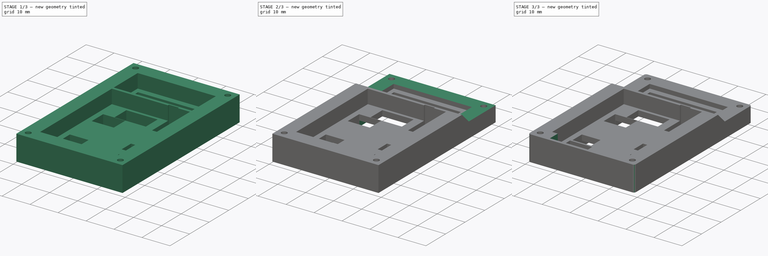
[diagram: build sequence overview — one tinted view per stage of 3, left to right]
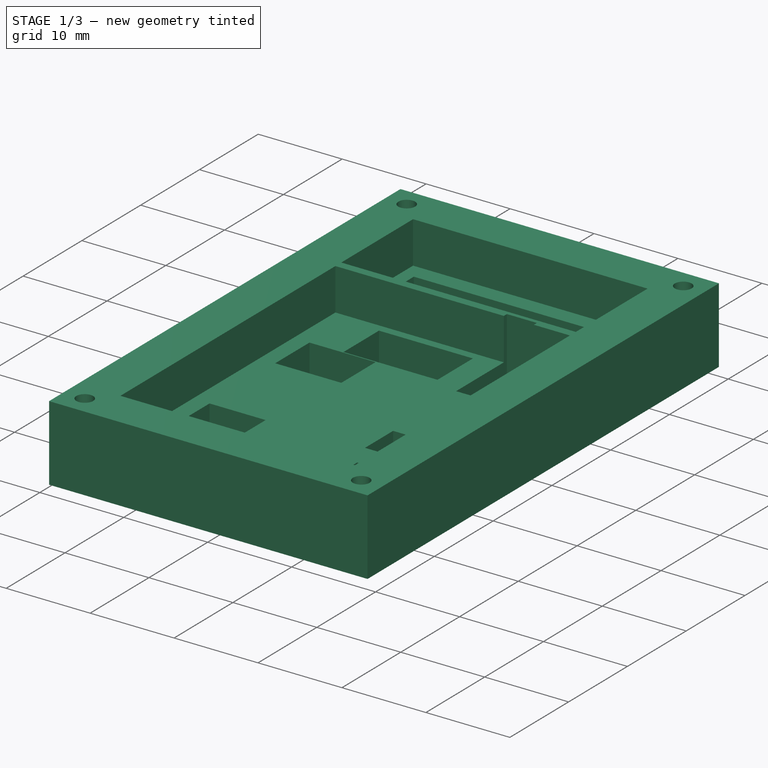
[diagram: stage 1 of 3 — iso view after this stage's code; geometry added in this stage tinted green]
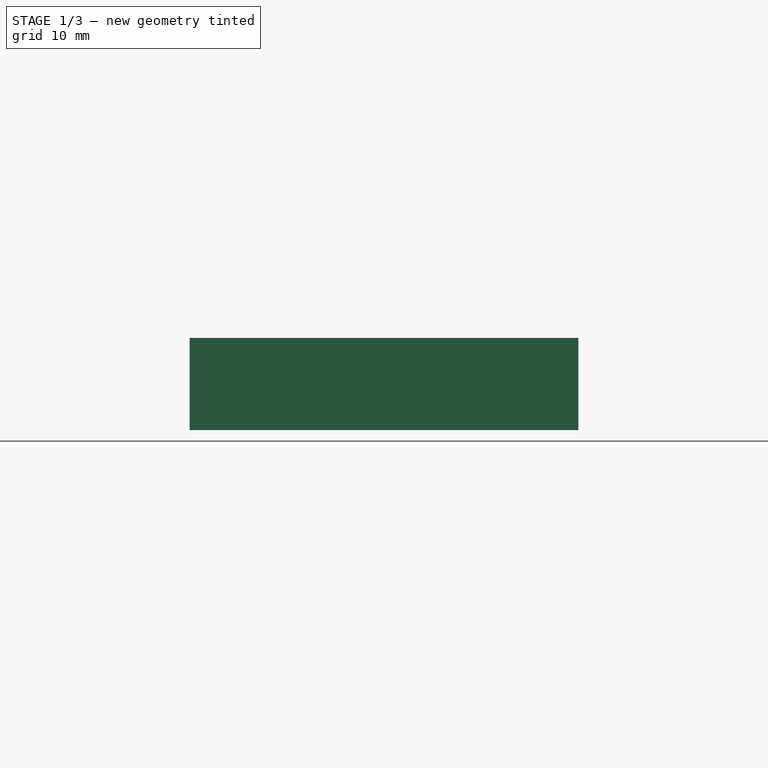
[diagram: stage 1 of 3 — front view after this stage's code; geometry added in this stage tinted green]
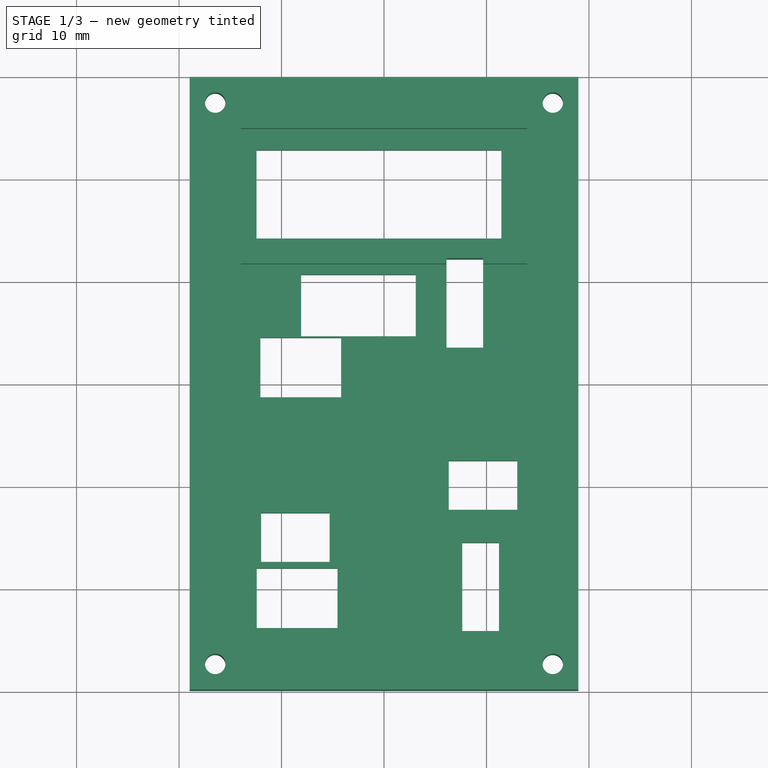
[diagram: stage 1 of 3 — top view after this stage's code; geometry added in this stage tinted green]
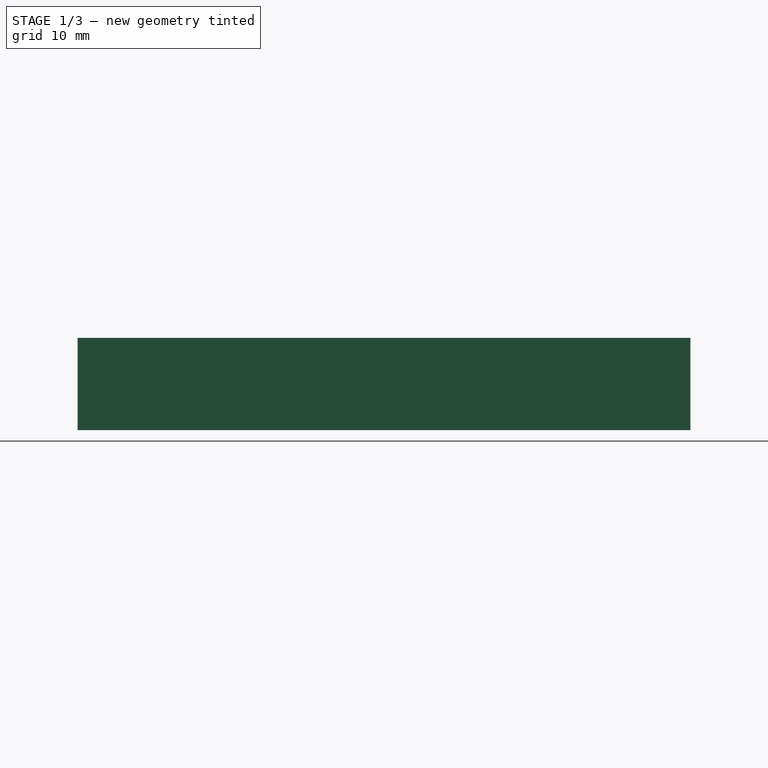
[diagram: stage 1 of 3 — right view after this stage's code; geometry added in this stage tinted green]
FCSTD DOCUMENT  (FreeCAD 0.18R16093 +53 (Git))
Label: middle_plate
License: All rights reserved
LicenseURL: http://en.wikipedia.org/wiki/All_rights_reserved
objects: Sketcher::SketchObject×5, PartDesign::Pocket×4, PartDesign::Pad×1, PartDesign::Fillet×1, PartDesign::Body×1
note: 17 computed .brp shape members not serialized (recipe doc carries the construction recipe); baked Part::Feature solids carry a one-line shape summary decoded from their .brp

FEATURE [Sketcher::SketchObject] Sketch002  label="Sketch"
  MapMode = 5
  Placement = pos=(0,0,9) rot=(0,0,1;0rad)
  sketch-geometry (40):
    g0: LineSegment StartX=-18.97 StartY=29.892 StartZ=0 EndX=18.97 EndY=29.892 EndZ=0
    g1: LineSegment StartX=18.97 StartY=29.892 StartZ=0 EndX=18.97 EndY=-29.892 EndZ=0
    g2: LineSegment StartX=18.97 StartY=-29.892 StartZ=0 EndX=-18.97 EndY=-29.892 EndZ=0
    g3: LineSegment StartX=-18.97 StartY=-29.892 StartZ=0 EndX=-18.97 EndY=29.892 EndZ=0
    g4: LineSegment StartX=-12.446 StartY=22.847 StartZ=0 EndX=11.46 EndY=22.847 EndZ=0
    g5: LineSegment StartX=11.46 StartY=22.847 StartZ=0 EndX=11.46 EndY=14.213 EndZ=0
    g6: LineSegment StartX=11.46 StartY=14.213 StartZ=0 EndX=-12.446 EndY=14.213 EndZ=0
    g7: LineSegment StartX=-12.446 StartY=14.213 StartZ=0 EndX=-12.446 EndY=22.847 EndZ=0
    g8: LineSegment StartX=-8.085 StartY=10.69 StartZ=0 EndX=3.104 EndY=10.69 EndZ=0
    g9: LineSegment StartX=3.104 StartY=10.69 StartZ=0 EndX=3.104 EndY=4.668 EndZ=0
    g10: LineSegment StartX=3.104 StartY=4.668 StartZ=0 EndX=-8.085 EndY=4.668 EndZ=0
    g11: LineSegment StartX=-8.085 StartY=4.668 StartZ=0 EndX=-8.085 EndY=10.69 EndZ=0
    g12: LineSegment StartX=6.095 StartY=12.202 StartZ=0 EndX=9.675 EndY=12.202 EndZ=0
    g13: LineSegment StartX=9.675 StartY=12.202 StartZ=0 EndX=9.675 EndY=3.563 EndZ=0
    g14: LineSegment StartX=9.675 StartY=3.563 StartZ=0 EndX=6.095 EndY=3.563 EndZ=0
    g15: LineSegment StartX=6.095 StartY=3.563 StartZ=0 EndX=6.095 EndY=12.202 EndZ=0
    g16: LineSegment StartX=7.638 StartY=-15.461 StartZ=0 EndX=11.218 EndY=-15.461 EndZ=0
    g17: LineSegment StartX=11.218 StartY=-15.461 StartZ=0 EndX=11.218 EndY=-24.1 EndZ=0
    g18: LineSegment StartX=11.218 StartY=-24.1 StartZ=0 EndX=7.638 EndY=-24.1 EndZ=0
    g19: LineSegment StartX=7.638 StartY=-24.1 StartZ=0 EndX=7.638 EndY=-15.461 EndZ=0
    g20: LineSegment StartX=6.32 StartY=-7.475 StartZ=0 EndX=13.005 EndY=-7.475 EndZ=0
    g21: LineSegment StartX=13.005 StartY=-7.475 StartZ=0 EndX=13.005 EndY=-12.26 EndZ=0
    g22: LineSegment StartX=13.005 StartY=-12.26 StartZ=0 EndX=6.32 EndY=-12.26 EndZ=0
    g23: LineSegment StartX=6.32 StartY=-12.26 StartZ=0 EndX=6.32 EndY=-7.475 EndZ=0
    g24: LineSegment StartX=-11.986 StartY=-12.566 StartZ=0 EndX=-5.301 EndY=-12.566 EndZ=0
    g25: LineSegment StartX=-5.301 StartY=-12.566 StartZ=0 EndX=-5.301 EndY=-17.351 EndZ=0
    g26: LineSegment StartX=-5.301 StartY=-17.351 StartZ=0 EndX=-11.986 EndY=-17.351 EndZ=0
    g27: LineSegment StartX=-11.986 StartY=-17.351 StartZ=0 EndX=-11.986 EndY=-12.566 EndZ=0
    g28: Circle CenterX=-16.47 CenterY=27.392 CenterZ=0 NormalX=0 NormalY=0 NormalZ=1 AngleXU=0 Radius=1
    g29: Circle CenterX=16.47 CenterY=27.392 CenterZ=0 NormalX=0 NormalY=0 NormalZ=1 AngleXU=0 Radius=1
    g30: Circle CenterX=-16.47 CenterY=-27.392 CenterZ=0 NormalX=0 NormalY=0 NormalZ=1 AngleXU=0 Radius=1
    g31: Circle CenterX=16.47 CenterY=-27.392 CenterZ=0 NormalX=0 NormalY=0 NormalZ=1 AngleXU=0 Radius=1
    g32: LineSegment StartX=-12.06 StartY=4.542 StartZ=0 EndX=-4.182 EndY=4.542 EndZ=0
    g33: LineSegment StartX=-4.182 StartY=4.542 StartZ=0 EndX=-4.182 EndY=-1.29 EndZ=0
    g34: LineSegment StartX=-4.182 StartY=-1.29 StartZ=0 EndX=-12.06 EndY=-1.29 EndZ=0
    g35: LineSegment StartX=-12.06 StartY=-1.29 StartZ=0 EndX=-12.06 EndY=4.542 EndZ=0
    g36: LineSegment StartX=-12.413 StartY=-17.971 StartZ=0 EndX=-4.535 EndY=-17.971 EndZ=0
    g37: LineSegment StartX=-4.535 StartY=-17.971 StartZ=0 EndX=-4.535 EndY=-23.803 EndZ=0
    g38: LineSegment StartX=-4.535 StartY=-23.803 StartZ=0 EndX=-12.413 EndY=-23.803 EndZ=0
    g39: LineSegment StartX=-12.413 StartY=-23.803 StartZ=0 EndX=-12.413 EndY=-17.971 EndZ=0
  constraints (120):
    c: Coincident(g0,g1)
    c: Coincident(g1,g2)
    c: Coincident(g2,g3)
    c: Coincident(g3,g0)
    c: Horizontal(g0)
    c: Horizontal(g2)
    c: Vertical(g1)
    c: Vertical(g3)
    c: DistanceX(g0,g0) = 37.94
    c: DistanceY(g1,g1) = 59.784
    c: DistanceX(g0,g-1) = 18.97
    c: DistanceY(g-1,g0) = 29.892
    c: Coincident(g4,g5)
    c: Coincident(g5,g6)
    c: Coincident(g6,g7)
    c: Coincident(g7,g4)
    c: Horizontal(g4)
    c: Horizontal(g6)
    c: Vertical(g5)
    c: Vertical(g7)
    c: DistanceX(g4,g4) = 23.906
    c: DistanceY(g7,g7) = 8.634
    c: DistanceX(g4,g0) = 7.51
    c: DistanceY(g4,g0) = 7.045
    c: Coincident(g8,g9)
    c: Coincident(g9,g10)
    c: Coincident(g10,g11)
    c: Coincident(g11,g8)
    c: Horizontal(g8)
    c: Horizontal(g10)
    c: Vertical(g9)
    c: Vertical(g11)
    c: DistanceX(g8,g8) = 11.189
    c: DistanceY(g11,g11) = 6.022
    c: DistanceX(g0,g8) = 10.885
    c: DistanceY(g8,g0) = 19.202
    c: Coincident(g12,g13)
    c: Coincident(g13,g14)
    c: Coincident(g14,g15)
    c: Coincident(g15,g12)
    c: Horizontal(g12)
    c: Horizontal(g14)
    c: Vertical(g13)
    c: Vertical(g15)
    c: DistanceX(g12,g12) = 3.58
    c: DistanceY(g15,g15) = 8.639
    c: DistanceY(g12,g0) = 17.69
    c: DistanceX(g12,g0) = 9.295
    c: Coincident(g16,g17)
    c: Coincident(g17,g18)
    c: Coincident(g18,g19)
    c: Coincident(g19,g16)
    c: Horizontal(g16)
    c: Horizontal(g18)
    c: Vertical(g17)
    c: Vertical(g19)
    c: DistanceX(g16,g16) = 3.58
    c: DistanceY(g19,g19) = 8.639
    c: DistanceX(g17,g1) = 7.752
    c: DistanceY(g16,g0) = 45.353
    c: Coincident(g20,g21)
    c: Coincident(g21,g22)
    c: Coincident(g22,g23)
    c: Coincident(g23,g20)
    c: Horizontal(g20)
    c: Horizontal(g22)
    c: Vertical(g21)
    c: Vertical(g23)
    c: DistanceX(g20,g20) = 6.685
    c: DistanceY(g23,g23) = 4.785
    c: DistanceX(g20,g1) = 5.965
    c: DistanceY(g20,g0) = 37.367
    c: Coincident(g24,g25)
    c: Coincident(g25,g26)
    c: Coincident(g26,g27)
    c: Coincident(g27,g24)
    c: Horizontal(g24)
    c: Horizontal(g26)
    c: Vertical(g25)
    c: Vertical(g27)
    c: DistanceX(g24,g24) = 6.685
    c: DistanceY(g25,g25) = 4.785
    c: DistanceX(g2,g26) = 6.984
    c: DistanceY(g2,g26) = 12.541
    c: DistanceX(g0,g28) = 2.5
    c: DistanceY(g28,g0) = 2.5
    c: Radius(g28) = 1
    c: DistanceX(g29,g0) = 2.5
    c: DistanceY(g29,g0) = 2.5
    c: Radius(g29) = 1
    c: DistanceX(g2,g30) = 2.5
    c: DistanceX(g31,g1) = 2.5
    c: DistanceY(g2,g30) = 2.5
    c: DistanceY(g1,g31) = 2.5
    c: Radius(g30) = 1
    c: Radius(g31) = 1
    c: Coincident(g32,g33)
    c: Coincident(g33,g34)
    c: Coincident(g34,g35)
    c: Coincident(g35,g32)
    c: Horizontal(g32)
    c: Horizontal(g34)
    c: Vertical(g33)
    c: Vertical(g35)
    c: DistanceX(g32,g32) = 7.878
    c: DistanceY(g33,g33) = 5.832
    c: DistanceY(g32,g0) = 25.35
    c: DistanceX(g0,g32) = 6.91
    c: Coincident(g36,g37)
    c: Coincident(g37,g38)
    c: Coincident(g38,g39)
    c: Coincident(g39,g36)
    c: Horizontal(g36)
    c: Horizontal(g38)
    c: Vertical(g37)
    c: Vertical(g39)
    c: DistanceY(g37,g37) = 5.832
    c: DistanceX(g38,g38) = 7.878
    c: DistanceY(g36,g0) = 47.863
    c: DistanceX(g0,g36) = 6.557
FEATURE [PartDesign::Pad] Pad
  Length = 9
  Length2 = 100
  Placement = pos=(0,0,9) rot=(0,0,1;0rad)
  Profile = -> Sketch002
  Type = 0
FEATURE [Sketcher::SketchObject] Sketch  label="Sketch001"
  MapMode = 5
  Placement = pos=(0,0,18) rot=(0,0,1;0rad)
  Support = -> [Pad]
  sketch-geometry (8):
    g0: LineSegment StartX=-13.97 StartY=11.683 StartZ=0 EndX=13.97 EndY=11.683 EndZ=0
    g1: LineSegment StartX=13.97 StartY=11.683 StartZ=0 EndX=13.97 EndY=-24.892 EndZ=0
    g2: LineSegment StartX=13.97 StartY=-24.892 StartZ=0 EndX=-13.97 EndY=-24.892 EndZ=0
    g3: LineSegment StartX=-13.97 StartY=-24.892 StartZ=0 EndX=-13.97 EndY=11.683 EndZ=0
    g4: LineSegment StartX=-13.97 StartY=24.892 StartZ=0 EndX=13.97 EndY=24.892 EndZ=0
    g5: LineSegment StartX=13.97 StartY=24.892 StartZ=0 EndX=13.97 EndY=12.683 EndZ=0
    g6: LineSegment StartX=13.97 StartY=12.683 StartZ=0 EndX=-13.97 EndY=12.683 EndZ=0
    g7: LineSegment StartX=-13.97 StartY=12.683 StartZ=0 EndX=-13.97 EndY=24.892 EndZ=0
  constraints (24):
    c: Coincident(g0,g1)
    c: Coincident(g1,g2)
    c: Coincident(g2,g3)
    c: Coincident(g3,g0)
    c: Horizontal(g0)
    c: Horizontal(g2)
    c: Vertical(g1)
    c: Vertical(g3)
    c: DistanceY(g-1,g0) = 11.683
    c: DistanceY(g1,g-1) = 24.892
    c: DistanceX(g2,g-1) = 13.97
    c: DistanceX(g0,g0) = 27.94
    c: Coincident(g4,g5)
    c: Coincident(g5,g6)
    c: Coincident(g6,g7)
    c: Coincident(g7,g4)
    c: Horizontal(g4)
    c: Horizontal(g6)
    c: Vertical(g5)
    c: Vertical(g7)
    c: DistanceY(g-1,g5) = 12.683
    c: DistanceX(g4,g4) = 27.94
    c: DistanceX(g6,g-1) = 13.97
    c: DistanceY(g-1,g4) = 24.892
FEATURE [Sketcher::SketchObject] Sketch003  label="Sketch002"
  MapMode = 5
  Placement = pos=(18.97,0,9) rot=(0.57735,0.57735,0.57735;2.0944rad)
  sketch-geometry (4):
    g0: LineSegment StartX=12.683 StartY=9 StartZ=0 EndX=29.892 EndY=9 EndZ=0
    g1: LineSegment StartX=29.892 StartY=9 StartZ=0 EndX=29.892 EndY=5.5 EndZ=0
    g2: LineSegment StartX=29.892 StartY=5.5 StartZ=0 EndX=16.183 EndY=5.5 EndZ=0
    g3: LineSegment StartX=16.183 StartY=5.5 StartZ=0 EndX=12.683 EndY=9 EndZ=0
  constraints (12):
    c: Coincident(g0,g1)
    c: Coincident(g1,g2)
    c: Coincident(g2,g3)
    c: Coincident(g3,g0)
    c: Horizontal(g0)
    c: Horizontal(g2)
    c: Vertical(g1)
    c: DistanceX(g0,g0) = 17.209
    c: DistanceX(g-1,g0) = 12.683
    c: DistanceY(g-1,g2) = 5.5
    c: DistanceY(g1,g1) = 3.5
    c: Angle(g2,g3) = 2.35619
FEATURE [Sketcher::SketchObject] Sketch004  label="Sketch003"
  MapMode = 5
  Placement = pos=(0,0,9) rot=(1,0,0;3.14159rad)
  sketch-geometry (4):
    g0: LineSegment StartX=-11.97 StartY=22.892 StartZ=0 EndX=11.97 EndY=22.892 EndZ=0
    g1: LineSegment StartX=11.97 StartY=22.892 StartZ=0 EndX=11.97 EndY=-22.892 EndZ=0
    g2: LineSegment StartX=11.97 StartY=-22.892 StartZ=0 EndX=-11.97 EndY=-22.892 EndZ=0
    g3: LineSegment StartX=-11.97 StartY=-22.892 StartZ=0 EndX=-11.97 EndY=22.892 EndZ=0
  constraints (12):
    c: Coincident(g0,g1)
    c: Coincident(g1,g2)
    c: Coincident(g2,g3)
    c: Coincident(g3,g0)
    c: Horizontal(g0)
    c: Horizontal(g2)
    c: Vertical(g1)
    c: Vertical(g3)
    c: DistanceX(g0,g0) = 23.94
    c: DistanceY(g3,g3) = 45.784
    c: DistanceX(g0,g-1) = 11.97
    c: DistanceY(g1,g-1) = 22.892
FEATURE [PartDesign::Pocket] Pocket
  BaseFeature = -> Pad
  Length = 5
  Length2 = 100
  Placement = pos=(0,0,9) rot=(0,0,1;0rad)
  Profile = -> Sketch
  Type = 0
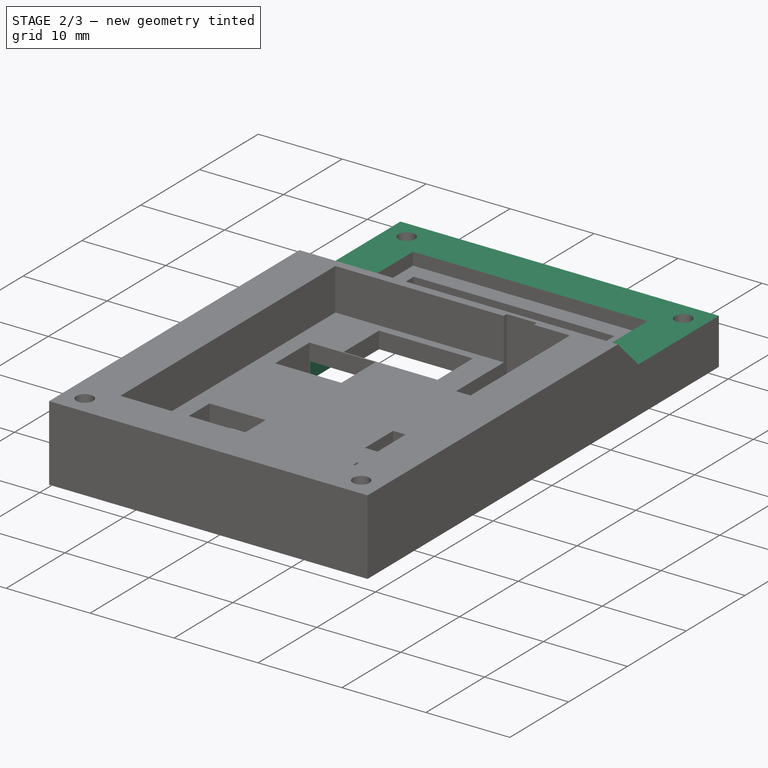
[diagram: stage 2 of 3 — iso view after this stage's code; geometry added in this stage tinted green]
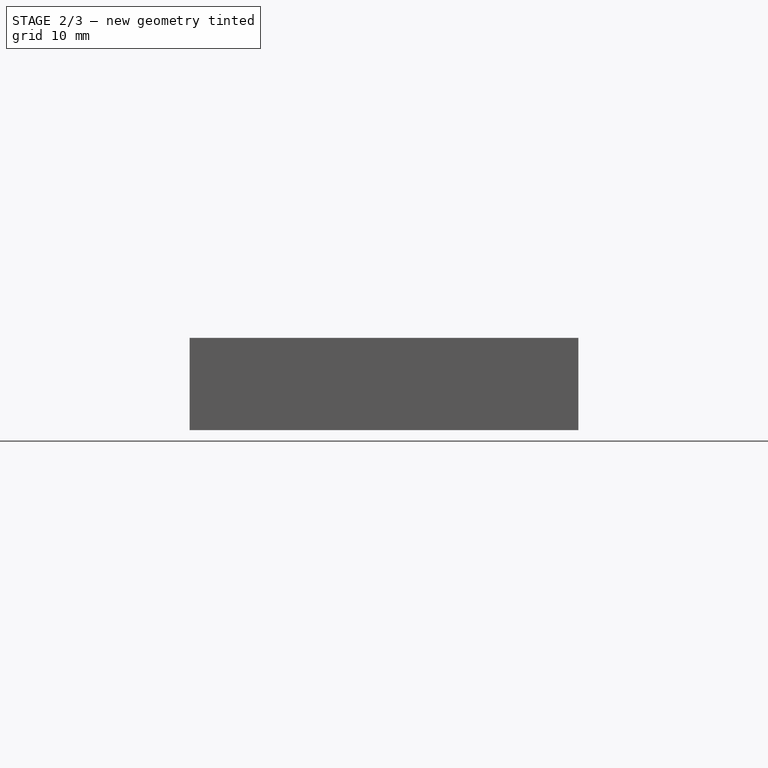
[diagram: stage 2 of 3 — front view after this stage's code; geometry added in this stage tinted green]
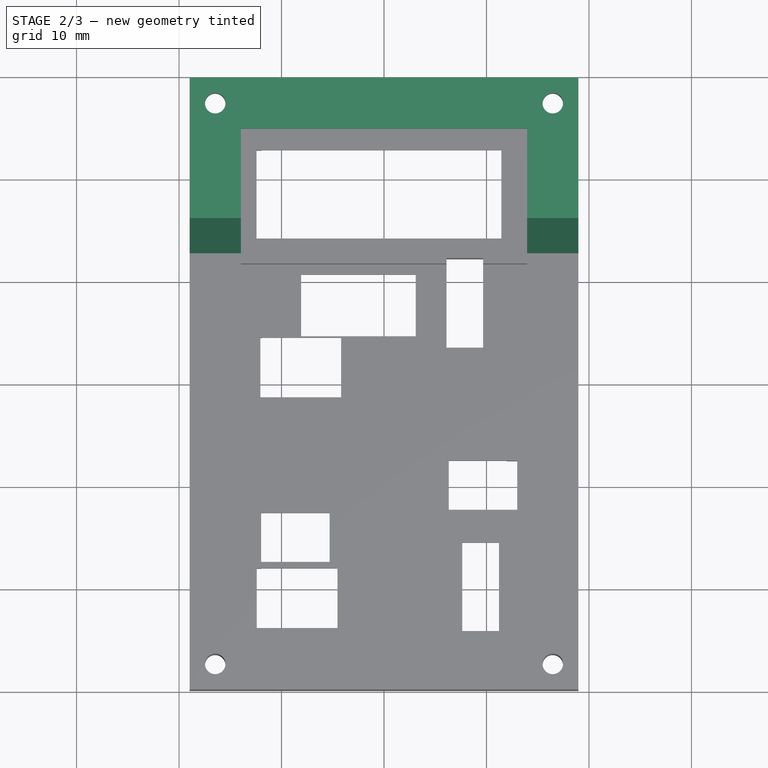
[diagram: stage 2 of 3 — top view after this stage's code; geometry added in this stage tinted green]
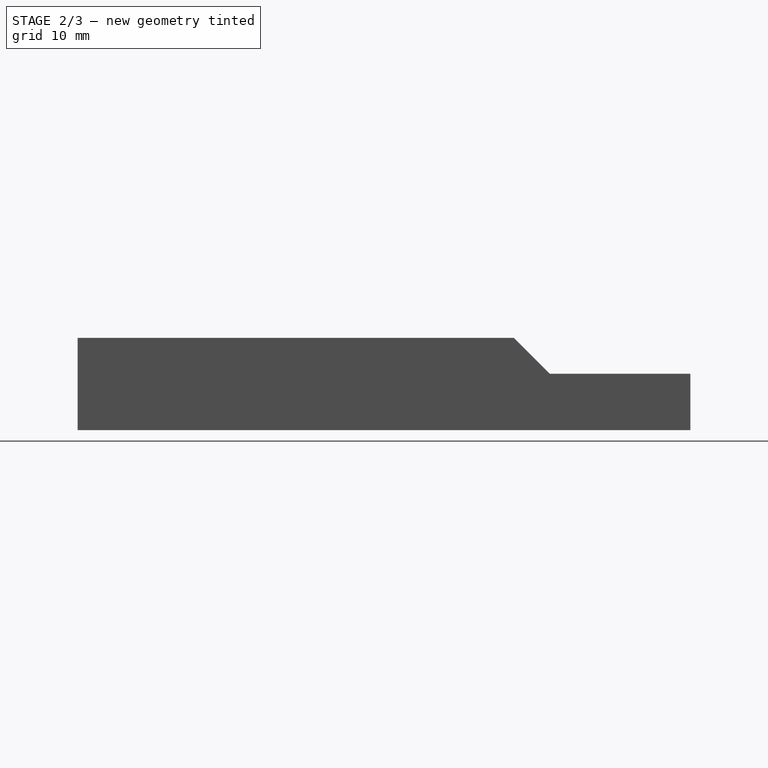
[diagram: stage 2 of 3 — right view after this stage's code; geometry added in this stage tinted green]
FEATURE [PartDesign::Pocket] Pocket001
  BaseFeature = -> Pocket
  Length = 37.94
  Length2 = 100
  Placement = pos=(0,0,9) rot=(0,0,1;0rad)
  Profile = -> Sketch003
  Type = 0
FEATURE [PartDesign::Pocket] Pocket002
  BaseFeature = -> Pocket001
  Length = 2
  Length2 = 100
  Placement = pos=(0,0,9) rot=(0,0,1;0rad)
  Profile = -> Sketch004
  Type = 0
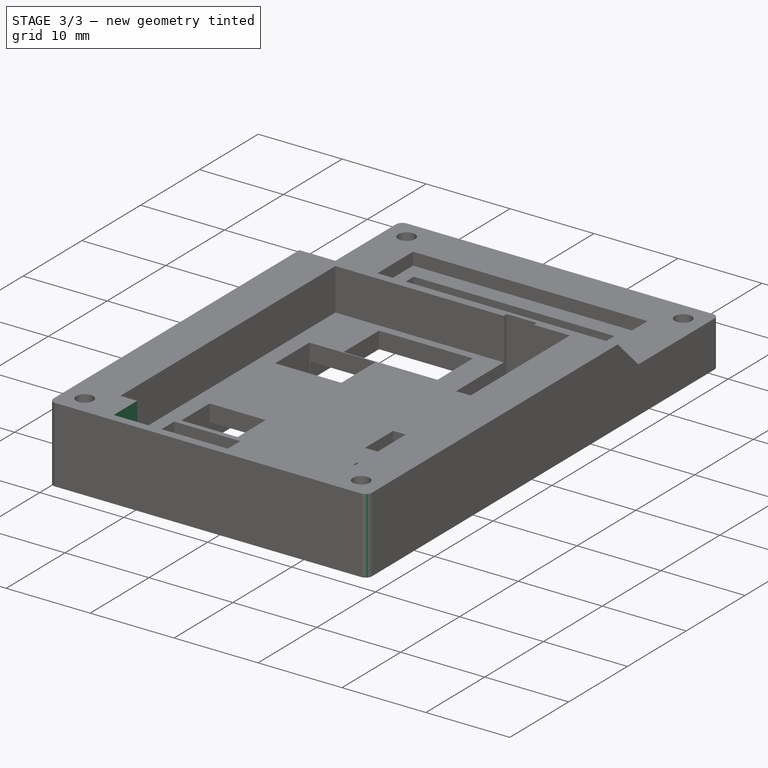
[diagram: stage 3 of 3 — iso view after this stage's code; geometry added in this stage tinted green]
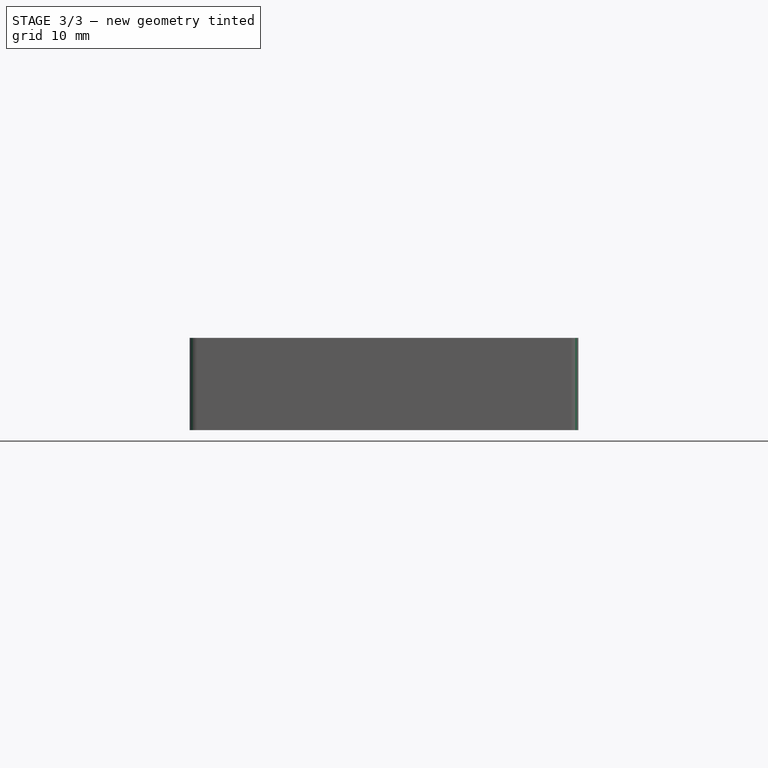
[diagram: stage 3 of 3 — front view after this stage's code; geometry added in this stage tinted green]
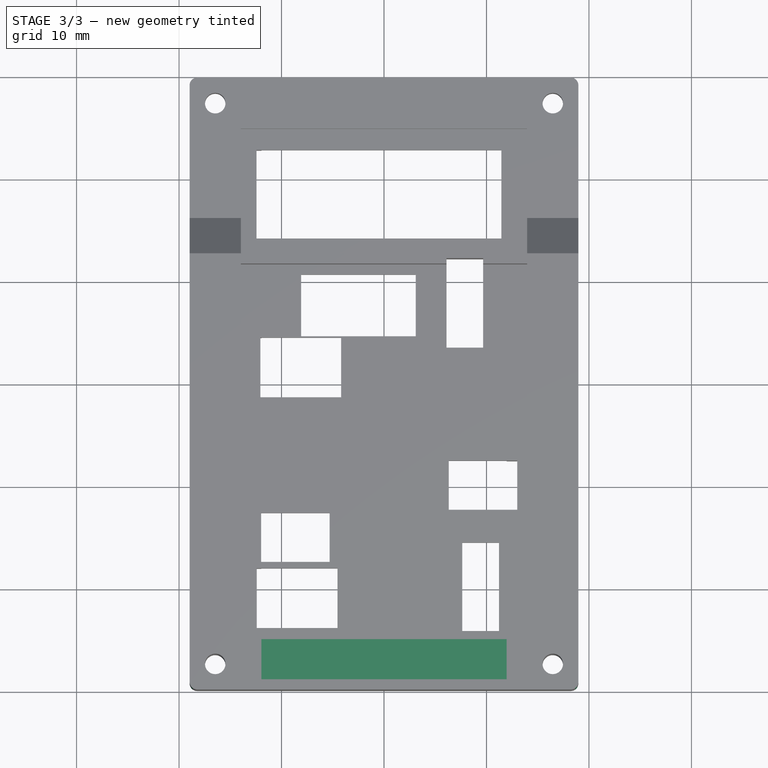
[diagram: stage 3 of 3 — top view after this stage's code; geometry added in this stage tinted green]
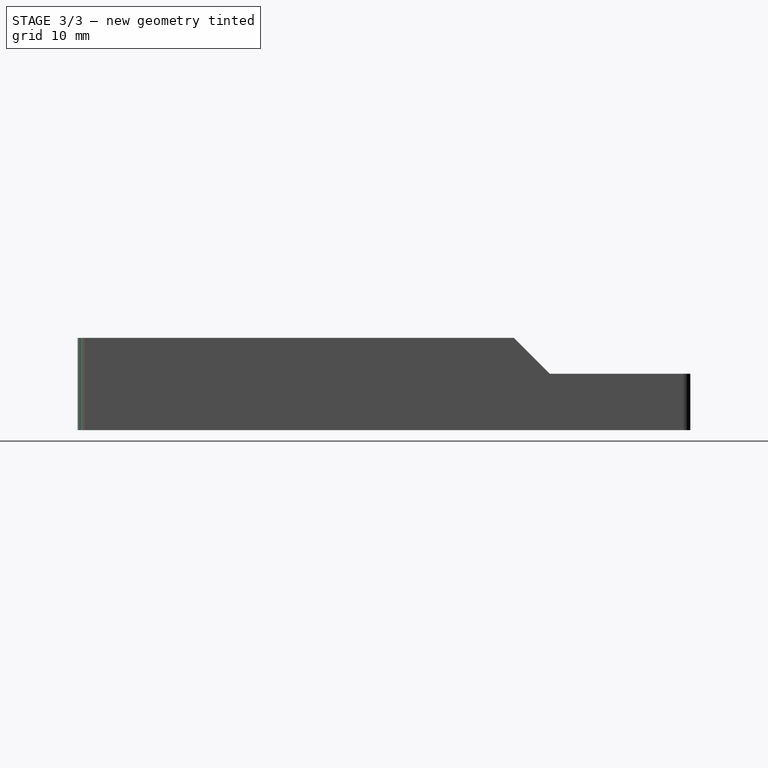
[diagram: stage 3 of 3 — right view after this stage's code; geometry added in this stage tinted green]
FEATURE [Sketcher::SketchObject] Sketch005  label="Sketch004"
  MapMode = 5
  Placement = pos=(0,0,18) rot=(0,0,1;0rad)
  Support = -> [Pocket002]
  sketch-geometry (4):
    g0: LineSegment StartX=-11.97 StartY=-24.892 StartZ=0 EndX=11.97 EndY=-24.892 EndZ=0
    g1: LineSegment StartX=11.97 StartY=-24.892 StartZ=0 EndX=11.97 EndY=-28.892 EndZ=0
    g2: LineSegment StartX=11.97 StartY=-28.892 StartZ=0 EndX=-11.97 EndY=-28.892 EndZ=0
    g3: LineSegment StartX=-11.97 StartY=-28.892 StartZ=0 EndX=-11.97 EndY=-24.892 EndZ=0
  constraints (12):
    c: Coincident(g0,g1)
    c: Coincident(g1,g2)
    c: Coincident(g2,g3)
    c: Coincident(g3,g0)
    c: Horizontal(g0)
    c: Horizontal(g2)
    c: Vertical(g1)
    c: Vertical(g3)
    c: DistanceX(g2,g2) = 23.94
    c: DistanceX(g0,g-1) = 11.97
    c: DistanceY(g0,g-1) = 24.892
    c: DistanceY(g1,g1) = 4
FEATURE [PartDesign::Pocket] Pocket003
  BaseFeature = -> Pocket002
  Length = 5
  Length2 = 100
  Placement = pos=(0,0,9) rot=(0,0,1;0rad)
  Profile = -> Sketch005
  Type = 0
FEATURE [PartDesign::Fillet] Fillet  label="middle_plate_complete_w_fillet"
  Base = -> Pocket003 [Edge54,Edge40,Edge2,Edge4]
  BaseFeature = -> Pocket003
  Placement = pos=(0,0,9) rot=(0,0,1;0rad)
  Radius = 0.75
FEATURE [PartDesign::Body] Body  label="middle_plate"
  Group = -> [Sketch002,Pad,Sketch,Sketch003,Sketch004,Sketch005,Pocket,Pocket001,Pocket002,Pocket003,Fillet]
  Origin = -> Origin
  Tip = -> Fillet
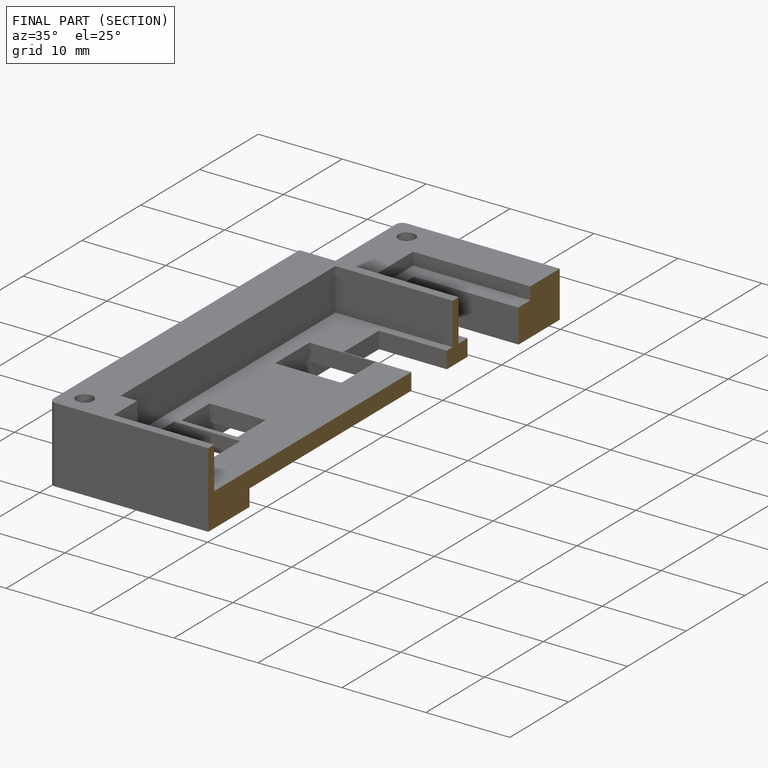
[diagram: finished part — half-section view (interior)]
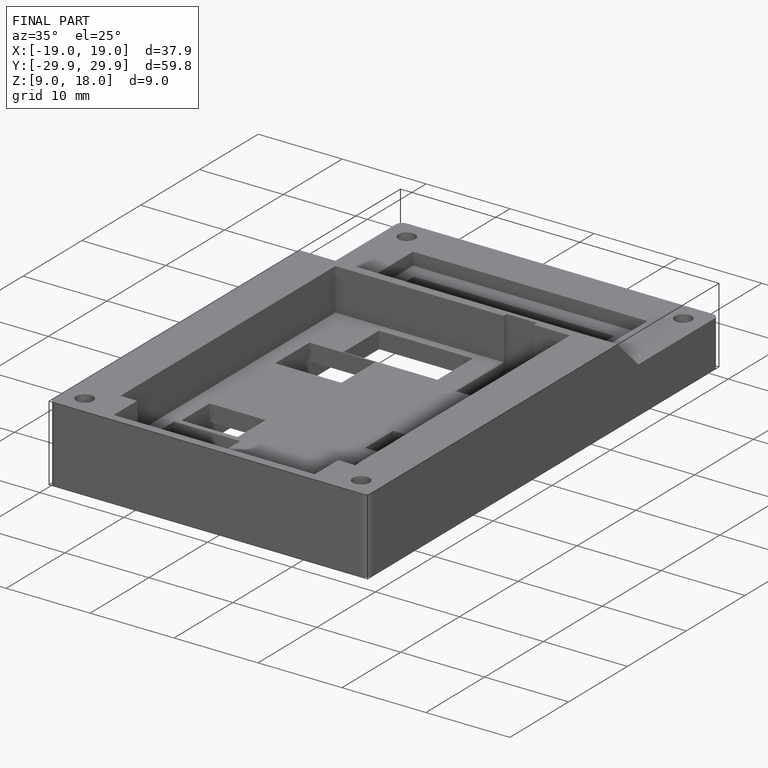
[diagram: finished part — iso view with bounding-box wireframe]
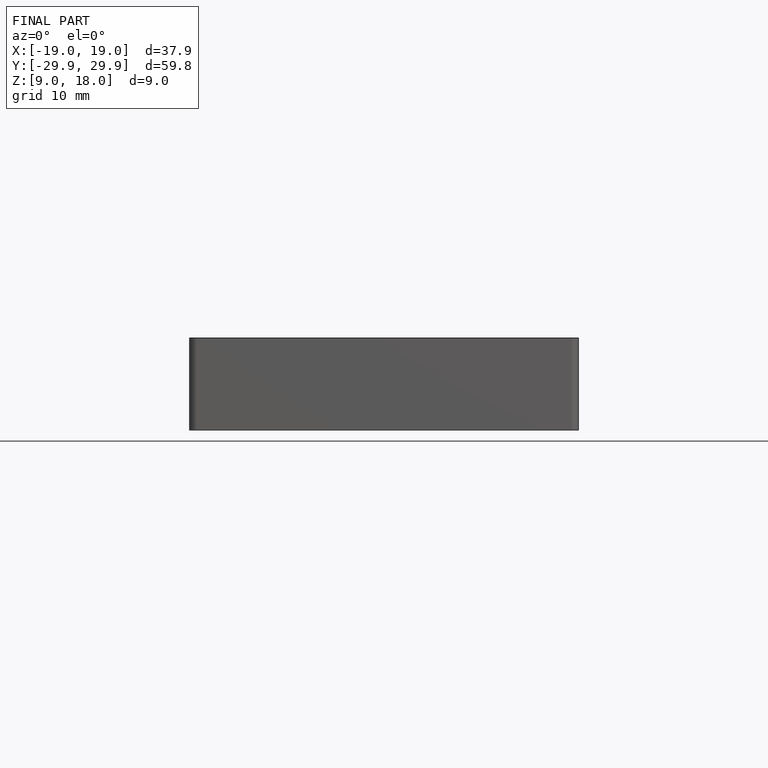
[diagram: finished part — front view with bounding-box wireframe]
